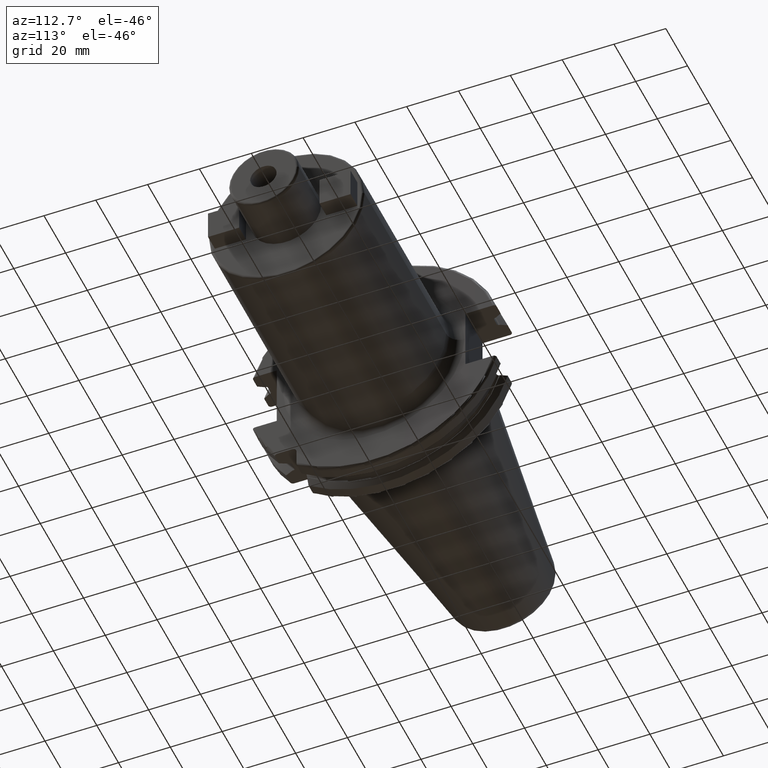
[diagram: clean part render]
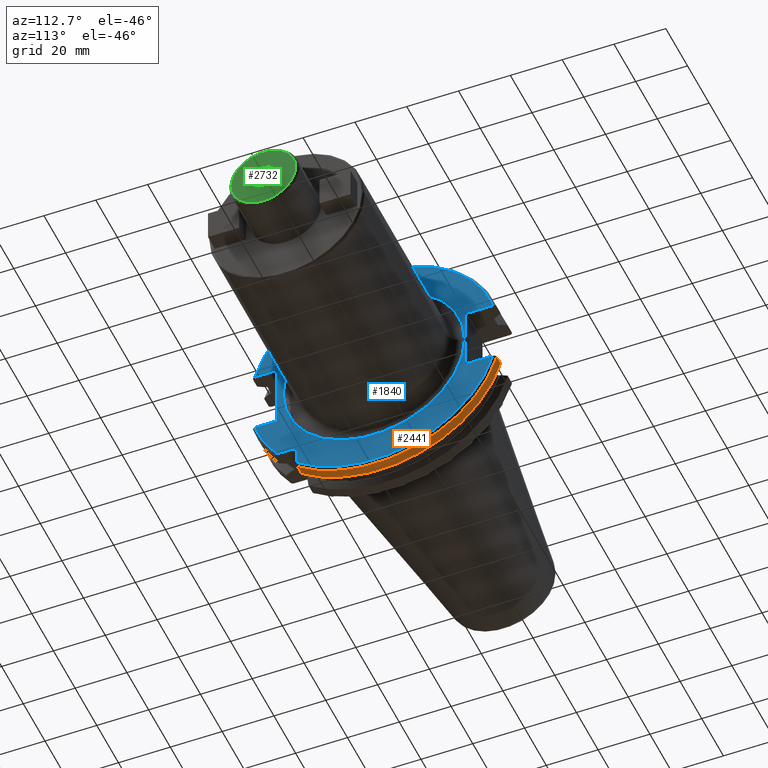
[diagram: same view with three faces highlighted in distinct colors, each labeled with its STEP entity id]
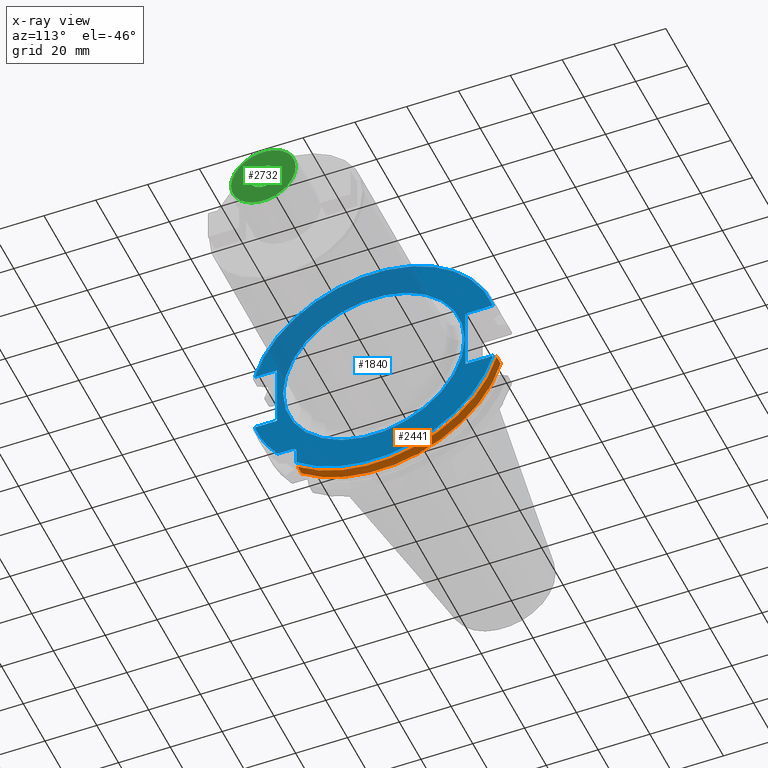
[diagram: x-ray of the same camera — body ghosted, the three highlighted faces saturated]
A machine part, auxiliary view with three faces highlighted in distinct colors.
The next image is the same camera in x-ray (body ghosted, the three faces saturated) — at least one of them is partly hidden behind the body in this view.
Their STEP definitions:

[orange] entity #2441 — the highlighted cylindrical surface (partial cylindrical patch) has radius 48.7375 mm, axis along (1, 0, 0).
#736=DIRECTION('',(1.E0,0.E0,0.E0));
#737=VECTOR('',#736,3.634621614173E0);
#738=CARTESIAN_POINT('',(1.441537838583E1,4.699929686974E1,-1.29E1));
#739=LINE('',#738,#737);
#740=CARTESIAN_POINT('',(1.441537838583E1,0.E0,0.E0));
#741=DIRECTION('',(1.E0,0.E0,0.E0));
#742=DIRECTION('',(0.E0,-6.124647345473E-1,-7.904979120376E-1));
#743=AXIS2_PLACEMENT_3D('',#740,#741,#742);
#745=DIRECTION('',(1.E0,0.E0,0.E0));
#746=VECTOR('',#745,3.634621614173E0);
#747=CARTESIAN_POINT('',(1.441537838583E1,-2.985E1,-3.852689198793E1));
#748=LINE('',#747,#746);
#749=CARTESIAN_POINT('',(1.805E1,0.E0,0.E0));
#750=DIRECTION('',(-1.E0,0.E0,0.E0));
#751=DIRECTION('',(0.E0,9.643354064066E-1,-2.646832521159E-1));
#752=AXIS2_PLACEMENT_3D('',#749,#750,#751);
#790=CARTESIAN_POINT('',(1.441537838583E1,4.699929686974E1,-1.29E1));
#802=CARTESIAN_POINT('',(1.441537838583E1,-2.985E1,-3.852689198793E1));
#1458=VERTEX_POINT('',#790);
#1508=CARTESIAN_POINT('',(1.805E1,4.699929686974E1,-1.29E1));
#1509=VERTEX_POINT('',#1508);
#1533=CARTESIAN_POINT('',(1.805E1,-2.985E1,-3.852689198793E1));
#1534=VERTEX_POINT('',#1533);
#1558=VERTEX_POINT('',#802);
#2428=CARTESIAN_POINT('',(-1.076325E2,0.E0,0.E0));
#2429=DIRECTION('',(1.E0,0.E0,0.E0));
#2430=DIRECTION('',(0.E0,-1.E0,0.E0));
#2431=AXIS2_PLACEMENT_3D('',#2428,#2429,#2430);
#2432=CYLINDRICAL_SURFACE('',#2431,4.87375E1);
#2433=ORIENTED_EDGE('',*,*,#2001,.F.);
#2435=ORIENTED_EDGE('',*,*,#2434,.F.);
#2436=ORIENTED_EDGE('',*,*,#1851,.T.);
#2438=ORIENTED_EDGE('',*,*,#2437,.F.);
#2439=EDGE_LOOP('',(#2433,#2435,#2436,#2438));
#2440=FACE_OUTER_BOUND('',#2439,.F.);
#2441=ADVANCED_FACE('',(#2440),#2432,.T.);
#744=CIRCLE('',#743,4.87375E1);
#753=CIRCLE('',#752,4.87375E1);
#1851=EDGE_CURVE('',#1558,#1534,#748,.T.);
#2001=EDGE_CURVE('',#1458,#1509,#739,.T.);
#2434=EDGE_CURVE('',#1558,#1458,#744,.T.);
#2437=EDGE_CURVE('',#1509,#1534,#753,.T.);

[blue] entity #1840 — the highlighted planar face has unit normal (1, 0, 0).
#126=DIRECTION('',(0.E0,0.E0,1.E0));
#127=VECTOR('',#126,5.653810627237E0);
#128=CARTESIAN_POINT('',(1.905E1,-2.985E1,-3.725381062724E1));
#129=LINE('',#128,#127);
#130=DIRECTION('',(0.E0,-1.E0,0.E0));
#131=VECTOR('',#130,5.653810627237E0);
#132=CARTESIAN_POINT('',(1.905E1,-3.16E1,-2.985E1));
#133=LINE('',#132,#131);
#134=DIRECTION('',(0.E0,1.E0,0.E0));
#135=VECTOR('',#134,8.461493733886E0);
#136=CARTESIAN_POINT('',(1.905E1,-4.596149373389E1,-1.29E1));
#137=LINE('',#136,#135);
#138=DIRECTION('',(0.E0,0.E0,1.E0));
#139=VECTOR('',#138,2.58E1);
#140=CARTESIAN_POINT('',(1.905E1,-3.75E1,-1.29E1));
#141=LINE('',#140,#139);
#142=DIRECTION('',(0.E0,1.E0,0.E0));
#143=VECTOR('',#142,8.461493733886E0);
#144=CARTESIAN_POINT('',(1.905E1,-4.596149373389E1,1.29E1));
#145=LINE('',#144,#143);
#146=DIRECTION('',(0.E0,-1.E0,0.E0));
#147=VECTOR('',#146,1.066149373389E1);
#148=CARTESIAN_POINT('',(1.905E1,4.596149373389E1,1.29E1));
#149=LINE('',#148,#147);
#150=DIRECTION('',(0.E0,0.E0,-1.E0));
#151=VECTOR('',#150,2.58E1);
#152=CARTESIAN_POINT('',(1.905E1,3.53E1,1.29E1));
#153=LINE('',#152,#151);
#154=DIRECTION('',(0.E0,-1.E0,0.E0));
#155=VECTOR('',#154,1.066149373389E1);
#156=CARTESIAN_POINT('',(1.905E1,4.596149373389E1,-1.29E1));
#157=LINE('',#156,#155);
#158=CARTESIAN_POINT('',(1.905E1,0.E0,0.E0));
#159=DIRECTION('',(1.E0,0.E0,0.E0));
#160=DIRECTION('',(0.E0,-1.E0,0.E0));
#161=AXIS2_PLACEMENT_3D('',#158,#159,#160);
#163=CARTESIAN_POINT('',(1.905E1,0.E0,0.E0));
#164=DIRECTION('',(1.E0,0.E0,0.E0));
#165=DIRECTION('',(0.E0,1.E0,0.E0));
#166=AXIS2_PLACEMENT_3D('',#163,#164,#165);
#172=CARTESIAN_POINT('',(1.905E1,-3.16E1,-3.16E1));
#173=DIRECTION('',(-1.E0,0.E0,0.E0));
#174=DIRECTION('',(0.E0,0.E0,1.E0));
#175=AXIS2_PLACEMENT_3D('',#172,#173,#174);
#545=CARTESIAN_POINT('',(1.905E1,0.E0,0.E0));
#546=DIRECTION('',(1.E0,0.E0,0.E0));
#547=DIRECTION('',(0.E0,9.627964123359E-1,2.702278083268E-1));
#548=AXIS2_PLACEMENT_3D('',#545,#546,#547);
#844=CARTESIAN_POINT('',(1.905E1,0.E0,0.E0));
#845=DIRECTION('',(-1.E0,0.E0,0.E0));
#846=DIRECTION('',(0.E0,9.627964123359E-1,-2.702278083268E-1));
#847=AXIS2_PLACEMENT_3D('',#844,#845,#846);
#860=CARTESIAN_POINT('',(1.905E1,0.E0,0.E0));
#861=DIRECTION('',(-1.E0,0.E0,0.E0));
#862=DIRECTION('',(0.E0,-7.803888060170E-1,-6.252945797329E-1));
#863=AXIS2_PLACEMENT_3D('',#860,#861,#862);
#874=CARTESIAN_POINT('',(1.905E1,-3.725381062724E1,-2.985E1));
#1462=CARTESIAN_POINT('',(1.905E1,4.596149373389E1,1.29E1));
#1463=CARTESIAN_POINT('',(1.905E1,3.53E1,1.29E1));
#1464=VERTEX_POINT('',#1462);
#1465=VERTEX_POINT('',#1463);
#1466=CARTESIAN_POINT('',(1.905E1,3.53E1,-1.29E1));
#1467=VERTEX_POINT('',#1466);
#1468=CARTESIAN_POINT('',(1.905E1,4.596149373389E1,-1.29E1));
#1469=VERTEX_POINT('',#1468);
#1470=CARTESIAN_POINT('',(1.905E1,-4.596149373389E1,-1.29E1));
#1471=CARTESIAN_POINT('',(1.905E1,-3.75E1,-1.29E1));
#1472=VERTEX_POINT('',#1470);
#1473=VERTEX_POINT('',#1471);
#1474=CARTESIAN_POINT('',(1.905E1,-3.75E1,1.29E1));
#1475=VERTEX_POINT('',#1474);
#1476=CARTESIAN_POINT('',(1.905E1,-4.596149373389E1,1.29E1));
#1477=VERTEX_POINT('',#1476);
#1531=CARTESIAN_POINT('',(1.905E1,-2.985E1,-3.725381062724E1));
#1532=VERTEX_POINT('',#1531);
#1539=CARTESIAN_POINT('',(1.905E1,-3.16E1,-2.985E1));
#1540=CARTESIAN_POINT('',(1.905E1,-2.985E1,-3.16E1));
#1541=VERTEX_POINT('',#1539);
#1542=VERTEX_POINT('',#1540);
#1564=VERTEX_POINT('',#874);
#1570=CARTESIAN_POINT('',(1.905E1,-3.5E1,0.E0));
#1571=CARTESIAN_POINT('',(1.905E1,3.5E1,0.E0));
#1572=VERTEX_POINT('',#1570);
#1573=VERTEX_POINT('',#1571);
#1804=CARTESIAN_POINT('',(1.905E1,0.E0,0.E0));
#1805=DIRECTION('',(1.E0,0.E0,0.E0));
#1806=DIRECTION('',(0.E0,-1.E0,0.E0));
#1807=AXIS2_PLACEMENT_3D('',#1804,#1805,#1806);
#1808=PLANE('',#1807);
#1810=ORIENTED_EDGE('',*,*,#1809,.T.);
#1812=ORIENTED_EDGE('',*,*,#1811,.F.);
#1814=ORIENTED_EDGE('',*,*,#1813,.T.);
#1816=ORIENTED_EDGE('',*,*,#1815,.T.);
#1818=ORIENTED_EDGE('',*,*,#1817,.T.);
#1820=ORIENTED_EDGE('',*,*,#1819,.T.);
#1822=ORIENTED_EDGE('',*,*,#1821,.F.);
#1824=ORIENTED_EDGE('',*,*,#1823,.F.);
#1826=ORIENTED_EDGE('',*,*,#1825,.T.);
#1827=ORIENTED_EDGE('',*,*,#1788,.T.);
#1829=ORIENTED_EDGE('',*,*,#1828,.F.);
#1831=ORIENTED_EDGE('',*,*,#1830,.T.);
#1832=EDGE_LOOP('',(#1810,#1812,#1814,#1816,#1818,#1820,#1822,#1824,#1826,#1827,
#1829,#1831));
#1833=FACE_OUTER_BOUND('',#1832,.F.);
#1835=ORIENTED_EDGE('',*,*,#1834,.T.);
#1837=ORIENTED_EDGE('',*,*,#1836,.T.);
#1838=EDGE_LOOP('',(#1835,#1837));
#1839=FACE_BOUND('',#1838,.F.);
#1840=ADVANCED_FACE('',(#1833,#1839),#1808,.T.);
#162=CIRCLE('',#161,3.5E1);
#167=CIRCLE('',#166,3.5E1);
#176=CIRCLE('',#175,1.75E0);
#549=CIRCLE('',#548,4.77375E1);
#848=CIRCLE('',#847,4.77375E1);
#864=CIRCLE('',#863,4.77375E1);
#1788=EDGE_CURVE('',#1465,#1467,#153,.T.);
#1809=EDGE_CURVE('',#1532,#1542,#129,.T.);
#1811=EDGE_CURVE('',#1541,#1542,#176,.T.);
#1813=EDGE_CURVE('',#1541,#1564,#133,.T.);
#1815=EDGE_CURVE('',#1564,#1472,#864,.T.);
#1817=EDGE_CURVE('',#1472,#1473,#137,.T.);
#1819=EDGE_CURVE('',#1473,#1475,#141,.T.);
#1821=EDGE_CURVE('',#1477,#1475,#145,.T.);
#1823=EDGE_CURVE('',#1464,#1477,#549,.T.);
#1825=EDGE_CURVE('',#1464,#1465,#149,.T.);
#1828=EDGE_CURVE('',#1469,#1467,#157,.T.);
#1830=EDGE_CURVE('',#1469,#1532,#848,.T.);
#1834=EDGE_CURVE('',#1572,#1573,#162,.T.);
#1836=EDGE_CURVE('',#1573,#1572,#167,.T.);

[green] entity #2732 — the highlighted planar face has unit normal (1, 0, 0).
#1024=CARTESIAN_POINT('',(1.21E2,0.E0,0.E0));
#1025=DIRECTION('',(-1.E0,0.E0,0.E0));
#1026=DIRECTION('',(0.E0,1.E0,0.E0));
#1027=AXIS2_PLACEMENT_3D('',#1024,#1025,#1026);
#1029=CARTESIAN_POINT('',(1.21E2,0.E0,0.E0));
#1030=DIRECTION('',(-1.E0,0.E0,0.E0));
#1031=DIRECTION('',(0.E0,-1.E0,0.E0));
#1032=AXIS2_PLACEMENT_3D('',#1029,#1030,#1031);
#1034=CARTESIAN_POINT('',(1.21E2,0.E0,0.E0));
#1035=DIRECTION('',(1.E0,0.E0,0.E0));
#1036=DIRECTION('',(0.E0,-1.E0,0.E0));
#1037=AXIS2_PLACEMENT_3D('',#1034,#1035,#1036);
#1039=CARTESIAN_POINT('',(1.21E2,0.E0,0.E0));
#1040=DIRECTION('',(1.E0,0.E0,0.E0));
#1041=DIRECTION('',(0.E0,1.E0,0.E0));
#1042=AXIS2_PLACEMENT_3D('',#1039,#1040,#1041);
#1592=CARTESIAN_POINT('',(1.21E2,-5.1E0,0.E0));
#1593=CARTESIAN_POINT('',(1.21E2,5.1E0,0.E0));
#1594=VERTEX_POINT('',#1592);
#1595=VERTEX_POINT('',#1593);
#1600=CARTESIAN_POINT('',(1.21E2,1.25E1,0.E0));
#1601=CARTESIAN_POINT('',(1.21E2,-1.25E1,0.E0));
#1602=VERTEX_POINT('',#1600);
#1603=VERTEX_POINT('',#1601);
#2717=CARTESIAN_POINT('',(1.21E2,0.E0,0.E0));
#2718=DIRECTION('',(1.E0,0.E0,0.E0));
#2719=DIRECTION('',(0.E0,-1.E0,0.E0));
#2720=AXIS2_PLACEMENT_3D('',#2717,#2718,#2719);
#2721=PLANE('',#2720);
#2722=ORIENTED_EDGE('',*,*,#2699,.T.);
#2723=ORIENTED_EDGE('',*,*,#2684,.T.);
#2724=EDGE_LOOP('',(#2722,#2723));
#2725=FACE_OUTER_BOUND('',#2724,.F.);
#2727=ORIENTED_EDGE('',*,*,#2726,.T.);
#2729=ORIENTED_EDGE('',*,*,#2728,.T.);
#2730=EDGE_LOOP('',(#2727,#2729));
#2731=FACE_BOUND('',#2730,.F.);
#2732=ADVANCED_FACE('',(#2725,#2731),#2721,.T.);
#1028=CIRCLE('',#1027,1.25E1);
#1033=CIRCLE('',#1032,1.25E1);
#1038=CIRCLE('',#1037,5.1E0);
#1043=CIRCLE('',#1042,5.1E0);
#2684=EDGE_CURVE('',#1603,#1602,#1033,.T.);
#2699=EDGE_CURVE('',#1602,#1603,#1028,.T.);
#2726=EDGE_CURVE('',#1594,#1595,#1038,.T.);
#2728=EDGE_CURVE('',#1595,#1594,#1043,.T.);